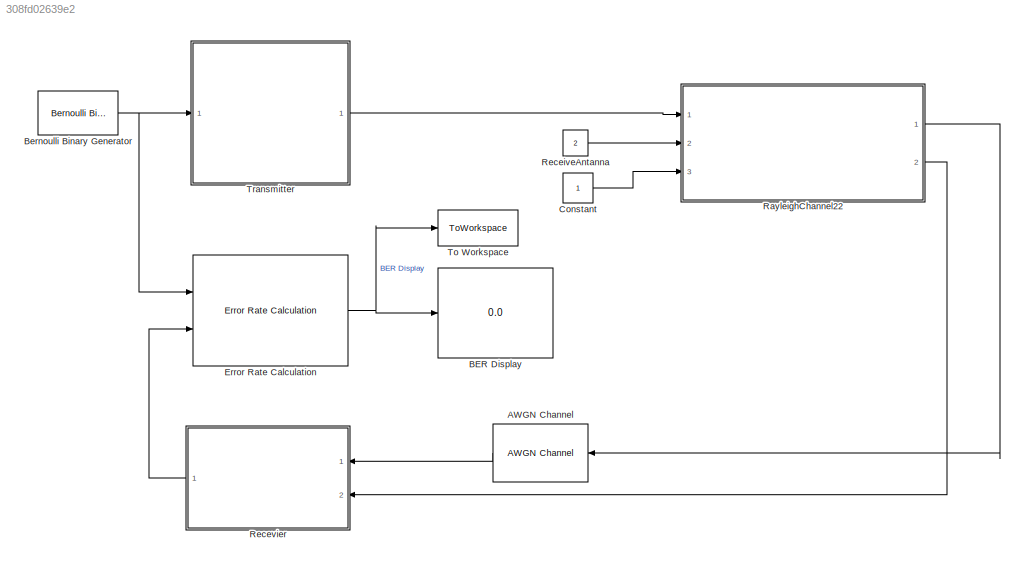
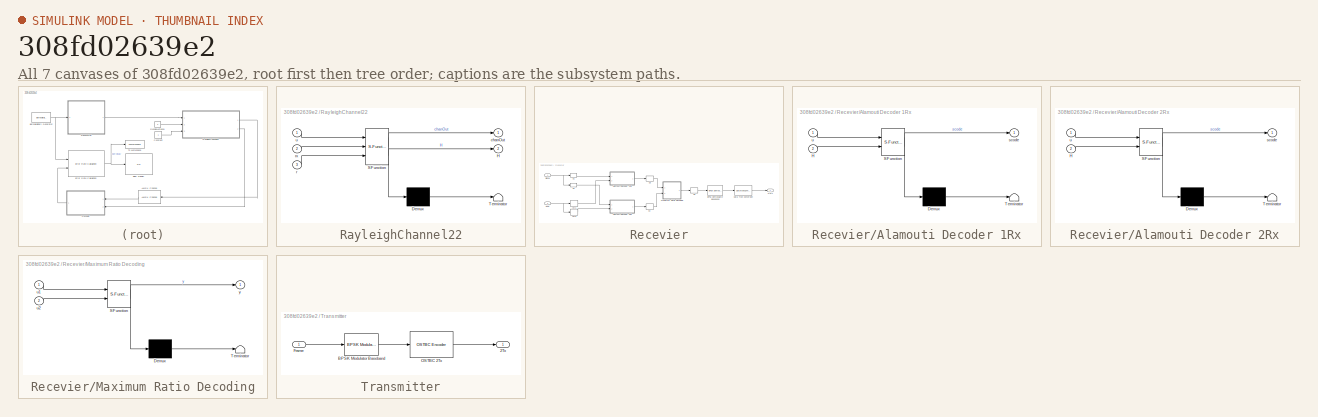
[diagram: thumbnail index - all 7 canvases of the model, root first then tree order]
MODEL slx_308fd02639e2
KIND model
CONFIG AbsTol = auto
CONFIG EnableMultiTasking = off
CONFIG FixedStep = auto
CONFIG MaxStep = auto
CONFIG MinStep = auto
CONFIG RelTol = 1e-3
CONFIG SampleTimeConstraint = Unconstrained
CONFIG Solver = FixedStepDiscrete
CONFIG SolverName = FixedStepDiscrete
CONFIG StartTime = 0.0
CONFIG StopTime = 10
WORKSPACE source: MAT-file member
WORKSPACE FrameLen = 100
BLOCK [Reference] AWGN Channel  REF=commchan3/AWGN
Channel
  Ports = [1, 1]
  SourceBlock = commchan3/AWGN\nChannel
  SourceProductBaseCode = CM
  SourceProductName = Communications System Toolbox
  SourceType = AWGN Channel
  UserDataPersistent = on
BLOCK [Display] BER Display
  Decimation = 1
  Ports = [1]
BLOCK [Reference] Bernoulli Binary Generator  REF=commrandsrc3/Bernoulli Binary
Generator
  Ports = [0, 1]
  SourceBlock = commrandsrc3/Bernoulli Binary\nGenerator
  SourceProductBaseCode = CM
  SourceProductName = Communications System Toolbox
  SourceType = Bernoulli Binary Generator
BLOCK [Constant] Constant
BLOCK [Reference] Error Rate Calculation  REF=commsink2/Error Rate
Calculation
  Ports = [2, 1]
  SourceBlock = commsink2/Error Rate\nCalculation
  SourceProductBaseCode = CM
  SourceProductName = Communications System Toolbox
  SourceType = Error Rate Calculation
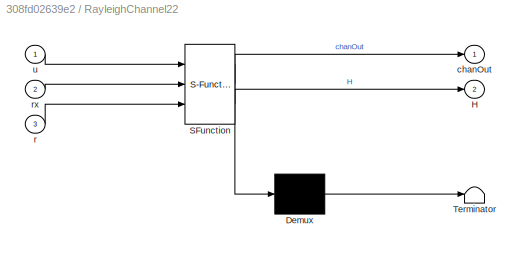
BLOCK [SubSystem] RayleighChannel22
  ErrorFcn = Stateflow.Translate.translate
  PermitHierarchicalResolution = ExplicitOnly
  Ports = [3, 2]
  RequestExecContextInheritance = off
  SFBlockType = MATLAB Function
  TreatAsAtomicUnit = on
BLOCK [Demux] RayleighChannel22/ Demux 
  Outputs = 1
  Ports = [1, 1]
BLOCK [S-Function] RayleighChannel22/ SFunction 
  EnableBusSupport = on
  FunctionName = sf_sfun
  PortCounts = [3 3]
  Ports = [3, 3]
  SFcnIsStateOwnerBlock = off
  SFunctionDeploymentMode = off
  Tag = Stateflow S-Function naibaoOSTBC_22 2
BLOCK [Terminator] RayleighChannel22/ Terminator 
BLOCK [Outport] RayleighChannel22/H
  IconDisplay = Port number
  Port = 2
BLOCK [Outport] RayleighChannel22/chanOut
  IconDisplay = Port number
BLOCK [Inport] RayleighChannel22/r
  IconDisplay = Port number
  Port = 3
BLOCK [Inport] RayleighChannel22/rx
  IconDisplay = Port number
  Port = 2
BLOCK [Inport] RayleighChannel22/u
  IconDisplay = Port number
BLOCK [Constant] ReceiveAntanna
  Value = 2
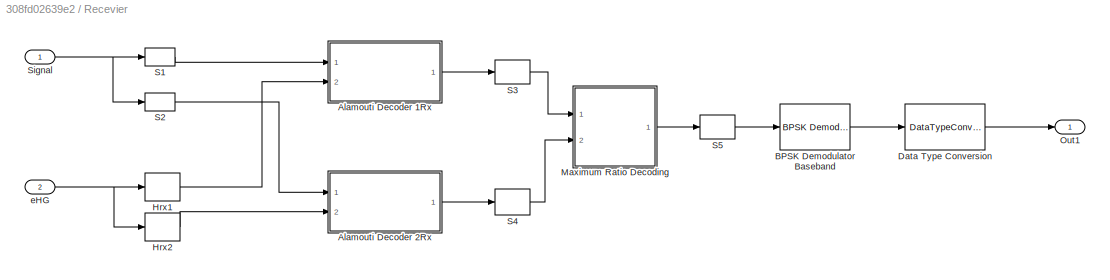
BLOCK [SubSystem] Recevier
  Ports = [2, 1]
  RequestExecContextInheritance = off
BLOCK [SubSystem] Recevier/Alamouti Decoder 1Rx
  ErrorFcn = Stateflow.Translate.translate
  PermitHierarchicalResolution = ExplicitOnly
  Ports = [2, 1]
  RequestExecContextInheritance = off
  SFBlockType = MATLAB Function
  TreatAsAtomicUnit = on
BLOCK [Demux] Recevier/Alamouti Decoder 1Rx/ Demux 
  Outputs = 1
  Ports = [1, 1]
BLOCK [S-Function] Recevier/Alamouti Decoder 1Rx/ SFunction 
  EnableBusSupport = on
  FunctionName = sf_sfun
  PortCounts = [2 2]
  Ports = [2, 2]
  SFcnIsStateOwnerBlock = off
  SFunctionDeploymentMode = off
  Tag = Stateflow S-Function naibaoOSTBC_22 1
BLOCK [Terminator] Recevier/Alamouti Decoder 1Rx/ Terminator 
BLOCK [Inport] Recevier/Alamouti Decoder 1Rx/H
  IconDisplay = Port number
  Port = 2
BLOCK [Outport] Recevier/Alamouti Decoder 1Rx/scode
  IconDisplay = Port number
BLOCK [Inport] Recevier/Alamouti Decoder 1Rx/u
  IconDisplay = Port number
BLOCK [SubSystem] Recevier/Alamouti Decoder 2Rx
  ErrorFcn = Stateflow.Translate.translate
  PermitHierarchicalResolution = ExplicitOnly
  Ports = [2, 1]
  RequestExecContextInheritance = off
  SFBlockType = MATLAB Function
  TreatAsAtomicUnit = on
BLOCK [Demux] Recevier/Alamouti Decoder 2Rx/ Demux 
  Outputs = 1
  Ports = [1, 1]
BLOCK [S-Function] Recevier/Alamouti Decoder 2Rx/ SFunction 
  EnableBusSupport = on
  FunctionName = sf_sfun
  PortCounts = [2 2]
  Ports = [2, 2]
  SFcnIsStateOwnerBlock = off
  SFunctionDeploymentMode = off
  Tag = Stateflow S-Function naibaoOSTBC_22 4
BLOCK [Terminator] Recevier/Alamouti Decoder 2Rx/ Terminator 
BLOCK [Inport] Recevier/Alamouti Decoder 2Rx/H
  IconDisplay = Port number
  Port = 2
BLOCK [Outport] Recevier/Alamouti Decoder 2Rx/scode
  IconDisplay = Port number
BLOCK [Inport] Recevier/Alamouti Decoder 2Rx/u
  IconDisplay = Port number
BLOCK [Reference] Recevier/BPSK Demodulator Baseband  REF=commdigbbndpm3/BPSK
Demodulator
Baseband
  Ports = [1, 1]
  SourceBlock = commdigbbndpm3/BPSK\nDemodulator\nBaseband
  SourceProductBaseCode = CM
  SourceProductName = Communications System Toolbox
  SourceType = BPSK Demodulator Baseband
BLOCK [DataTypeConversion] Recevier/Data Type Conversion
  OutDataTypeStr = boolean
  RndMeth = Floor
  SaturateOnIntegerOverflow = off
BLOCK [Selector] Recevier/Hrx1
  IndexOptions = Select all,Select all,Index vector (dialog)
  Indices = [1 3],1,1
  InputPortWidth = 3
  NumberOfDimensions = 3
  OutputSizes = 1,1,1
  Ports = [1, 1]
BLOCK [Selector] Recevier/Hrx2
  IndexOptions = Select all,Select all,Index vector (dialog)
  Indices = [1 3],1,2
  InputPortWidth = 3
  NumberOfDimensions = 3
  OutputSizes = 1,1,1
  Ports = [1, 1]
BLOCK [SubSystem] Recevier/Maximum Ratio Decoding
  ErrorFcn = Stateflow.Translate.translate
  PermitHierarchicalResolution = ExplicitOnly
  Ports = [2, 1]
  RequestExecContextInheritance = off
  SFBlockType = MATLAB Function
  TreatAsAtomicUnit = on
BLOCK [Demux] Recevier/Maximum Ratio Decoding/ Demux 
  Outputs = 1
  Ports = [1, 1]
BLOCK [S-Function] Recevier/Maximum Ratio Decoding/ SFunction 
  EnableBusSupport = on
  FunctionName = sf_sfun
  PortCounts = [2 2]
  Ports = [2, 2]
  SFcnIsStateOwnerBlock = off
  SFunctionDeploymentMode = off
  Tag = Stateflow S-Function naibaoOSTBC_22 5
BLOCK [Terminator] Recevier/Maximum Ratio Decoding/ Terminator 
BLOCK [Inport] Recevier/Maximum Ratio Decoding/u1
  IconDisplay = Port number
BLOCK [Inport] Recevier/Maximum Ratio Decoding/u2
  IconDisplay = Port number
  Port = 2
BLOCK [Outport] Recevier/Maximum Ratio Decoding/y
  IconDisplay = Port number
BLOCK [Outport] Recevier/Out1
  IconDisplay = Port number
BLOCK [Selector] Recevier/S1
  IndexOptions = Select all,Index vector (dialog)
  Indices = [1 3],1
  InputPortWidth = 3
  NumberOfDimensions = 2
  OutputSizes = 1,1
  Ports = [1, 1]
BLOCK [Selector] Recevier/S2
  IndexOptions = Select all,Index vector (dialog)
  Indices = [1 3],2
  InputPortWidth = 3
  NumberOfDimensions = 2
  OutputSizes = 1,1
  Ports = [1, 1]
BLOCK [Selector] Recevier/S3
  IndexOptions = Select all,Index vector (dialog)
  Indices = [1 3],1
  InputPortWidth = 3
  NumberOfDimensions = 2
  OutputSizes = 1,1
  Ports = [1, 1]
BLOCK [Selector] Recevier/S4
  IndexOptions = Select all,Index vector (dialog)
  Indices = [1 3],1
  InputPortWidth = 3
  NumberOfDimensions = 2
  OutputSizes = 1,1
  Ports = [1, 1]
BLOCK [Selector] Recevier/S5
  IndexOptions = Select all,Index vector (dialog)
  Indices = [1 3],1
  InputPortWidth = 3
  NumberOfDimensions = 2
  OutputSizes = 1,1
  Ports = [1, 1]
BLOCK [Inport] Recevier/Signal
  IconDisplay = Port number
BLOCK [Inport] Recevier/eHG
  IconDisplay = Port number
  Port = 2
BLOCK [ToWorkspace] To Workspace
  MaxDataPoints = 1
  Ports = [1]
  SampleTime = -1
  Save2DSignal = 2-D array (concatenate along first dimension)
  VariableName = BER_OSTBC_22
BLOCK [SubSystem] Transmitter
  Ports = [1, 1]
  RequestExecContextInheritance = off
BLOCK [Outport] Transmitter/2Tx
  IconDisplay = Port number
BLOCK [Reference] Transmitter/BPSK Modulator Baseband  REF=commdigbbndpm3/BPSK
Modulator
Baseband
  Ports = [1, 1]
  SourceBlock = commdigbbndpm3/BPSK\nModulator\nBaseband
  SourceProductBaseCode = CM
  SourceProductName = Communications System Toolbox
  SourceType = BPSK Modulator Baseband
BLOCK [Inport] Transmitter/Frame
  IconDisplay = Port number
BLOCK [Reference] Transmitter/OSTBC 2Tx  REF=commmimo/OSTBC Encoder
  Ports = [1, 1]
  SourceBlock = commmimo/OSTBC Encoder
  SourceProductBaseCode = CM
  SourceProductName = Communications System Toolbox
  SourceType = OSTBC Encoder
LINE AWGN Channel:1 -> Recevier:1
NET Bernoulli Binary Generator:1 -> Error Rate Calculation:1, Transmitter:1
LINE Constant:1 -> RayleighChannel22:3
NET Error Rate Calculation:1 -> BER Display:1, To Workspace:1
LINE RayleighChannel22:1 -> AWGN Channel:1
LINE RayleighChannel22:2 -> Recevier:2
LINE ReceiveAntanna:1 -> RayleighChannel22:2
LINE Recevier/Alamouti Decoder 1Rx:1 -> Recevier/S3:1
LINE Recevier/Alamouti Decoder 2Rx:1 -> Recevier/S4:1
LINE Recevier/BPSK Demodulator Baseband:1 -> Recevier/Data Type Conversion:1
LINE Recevier/Data Type Conversion:1 -> Recevier/Out1:1
LINE Recevier/Hrx1:1 -> Recevier/Alamouti Decoder 1Rx:2
LINE Recevier/Hrx2:1 -> Recevier/Alamouti Decoder 2Rx:2
LINE Recevier/Maximum Ratio Decoding:1 -> Recevier/S5:1
LINE Recevier/S1:1 -> Recevier/Alamouti Decoder 1Rx:1
LINE Recevier/S2:1 -> Recevier/Alamouti Decoder 2Rx:1
LINE Recevier/S3:1 -> Recevier/Maximum Ratio Decoding:1
LINE Recevier/S4:1 -> Recevier/Maximum Ratio Decoding:2
LINE Recevier/S5:1 -> Recevier/BPSK Demodulator Baseband:1
NET Recevier/Signal:1 -> Recevier/S1:1, Recevier/S2:1
NET Recevier/eHG:1 -> Recevier/Hrx1:1, Recevier/Hrx2:1
LINE Recevier:1 -> Error Rate Calculation:2
LINE Transmitter/BPSK Modulator Baseband:1 -> Transmitter/OSTBC 2Tx:1
LINE Transmitter/Frame:1 -> Transmitter/BPSK Modulator Baseband:1
LINE Transmitter/OSTBC 2Tx:1 -> Transmitter/2Tx:1
LINE Transmitter:1 -> RayleighChannel22:1
note: NET lines group one-source signal fan-out (src -> all destinations, sorted); 1:1 wires keep LINE
CHART Recevier/Alamouti Decoder
 1Rx states=1 transitions=1
  STATE_LABEL 'eML_blk_kernel()'
  STATE_LABEL "SCRIPT:\nfunction scode= AlamoutiDecoder(u,H)\n%% 基本参数\ns=size(u);\n%得到帧长\nFrameLength=s(1);\n%输出序列\nscode=complex(zeros(FrameLength,2));\nfor i = 1:FrameLength/2\n    scode(2*i-1,1) = H(2*i,1)' *  u(2*i-1) + H(2*i,2) * u(2*i)';\n    scode(2*i,1) = H(2*i,2)' *  u(2*i-1) - H(2*i,1) * u(2*i)';\nend\n"
CHART RayleighChannel22 states=1 transitions=1
  STATE_LABEL 'eML_blk_kernel()'
  STATE_LABEL 'SCRIPT:\nfunction [chanOut,H] = RayleighChannel22(u,rx,r)\n%得到Rayleigh信道，u为发射天线的信息，rx为接收天线的个数,r为编码速率\n%% 初始化参数\n% 获取输入帧长,输入天线数\ns=size(u);\nFrameLength=s(1);\nN=s(2);\n%接收天线数\nM=rx;\n%两个时隙中信道参数保持不变\nNum=0;\n%生成信道矩阵\nH = complex( zeros(FrameLength, N, 2) );\n%% 生成信道并计算输出\n%计算Num\nif s(2)==2 \n    Num=4;\nend\nif s(2)==4 && r==3/4\n    Num=8;\nend\nif s(2)==4 && r==1/2\n    Num=16;\nend\n%生成分组中，第一个分组中的信道增益\nH(1:Num:end, :, :...<+408ch>'
CHART Recevier/Alamouti Decoder
 2Rx states=1 transitions=1
  STATE_LABEL 'eML_blk_kernel()'
  STATE_LABEL "SCRIPT:\nfunction scode = AlamoutiDecoder(u,H)\n%% 基本参数\ns=size(u);\n%得到帧长\nFrameLength=s(1);\n%输出序列\nscode=complex(zeros(FrameLength,2));\nfor i = 1:FrameLength/2\n    scode(2*i-1,1) = H(2*i,1)' *  u(2*i-1) + H(2*i,2) * u(2*i)';\n    scode(2*i,1) = H(2*i,2)' *  u(2*i-1) - H(2*i,1) * u(2*i)';;\nend\n"
CHART Recevier/Maximum Ratio Decoding states=1 transitions=1
  STATE_LABEL 'eML_blk_kernel()'
  STATE_LABEL 'SCRIPT:\nfunction y = mrd(u1,u2)\n%两条信道完全对称,直接等增益合并\ns=size(u1);\ny=complex( zeros(s(1),2));\nfor i=1:s(1)\n    y(i,1)=(u1(i)+u2(i))/2;\nend\n'
